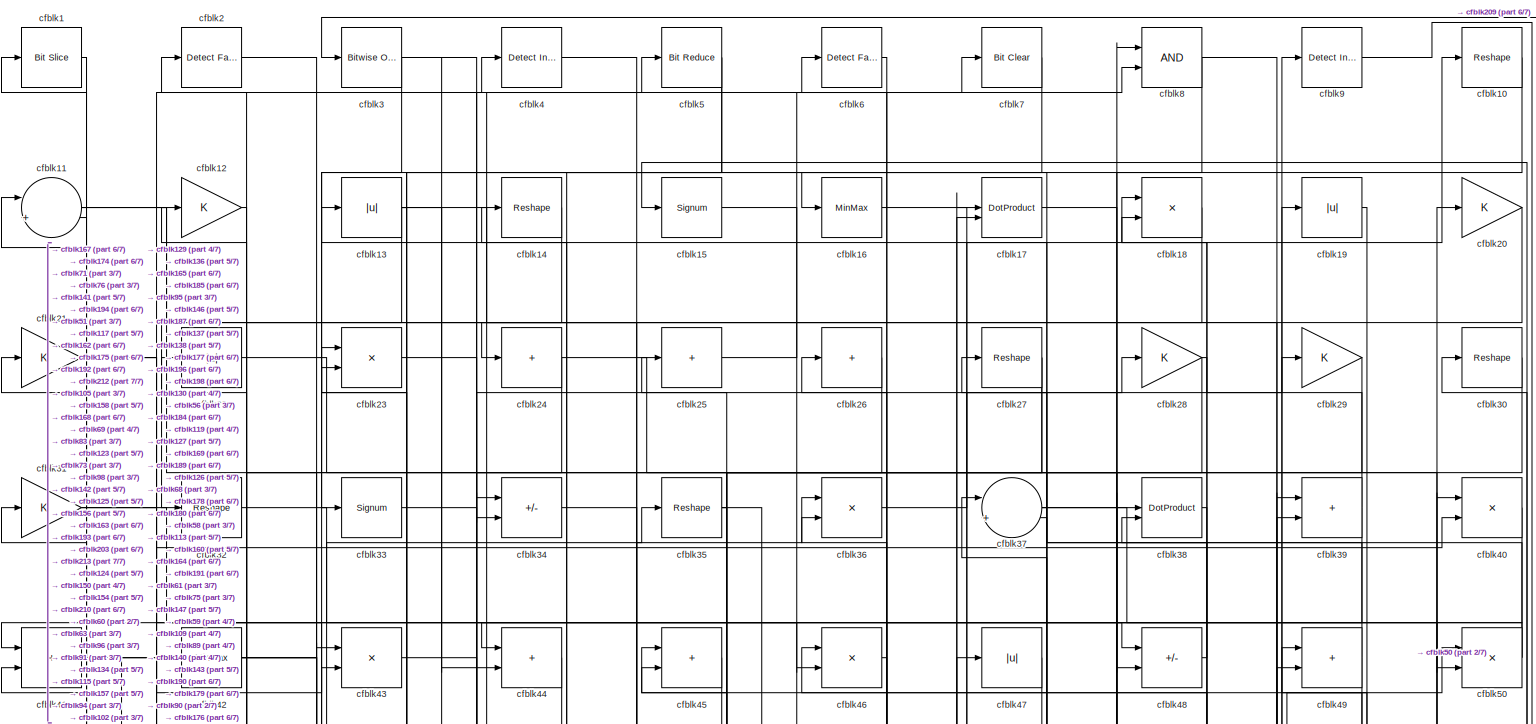
[diagram: root canvas - part 1/7, full width, top band]
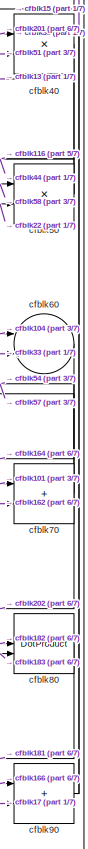
[diagram: root canvas - part 2/7, top right region]
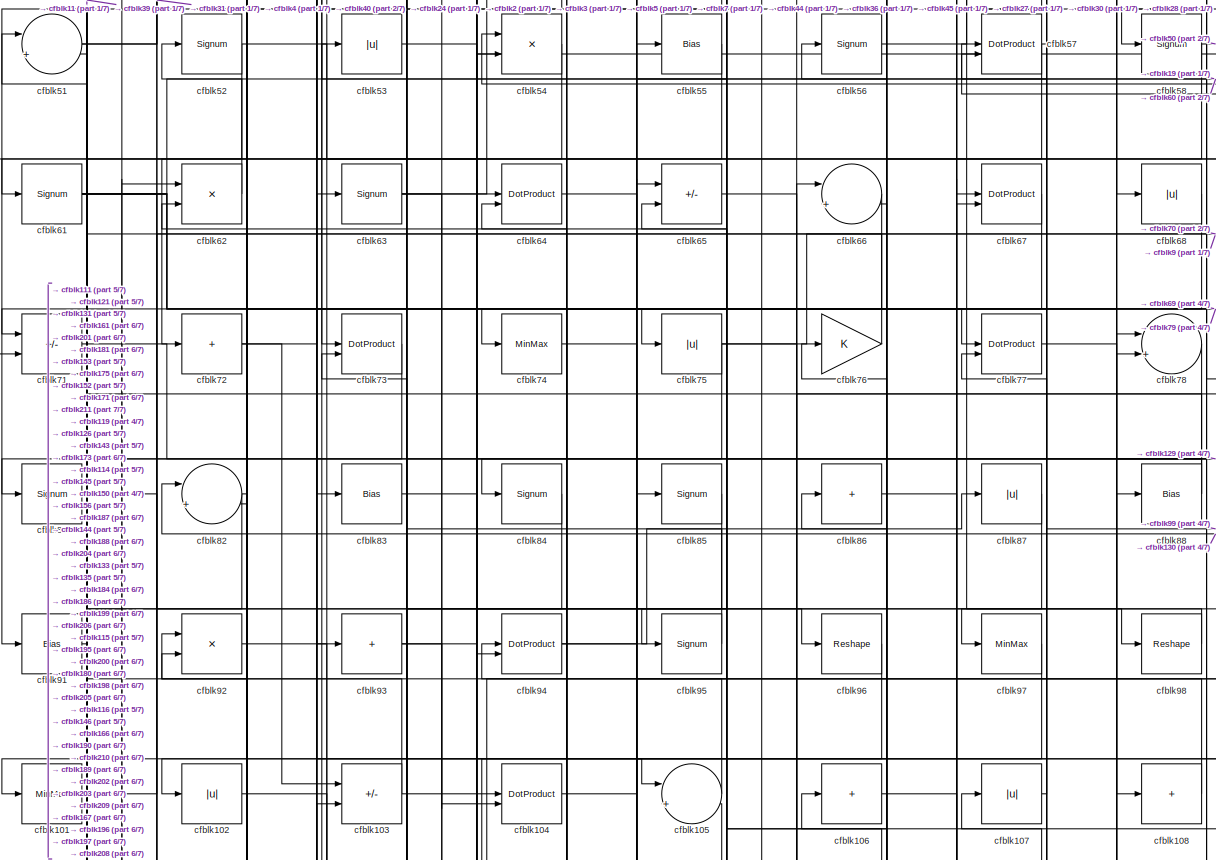
[diagram: root canvas - part 3/7, full width, middle band]
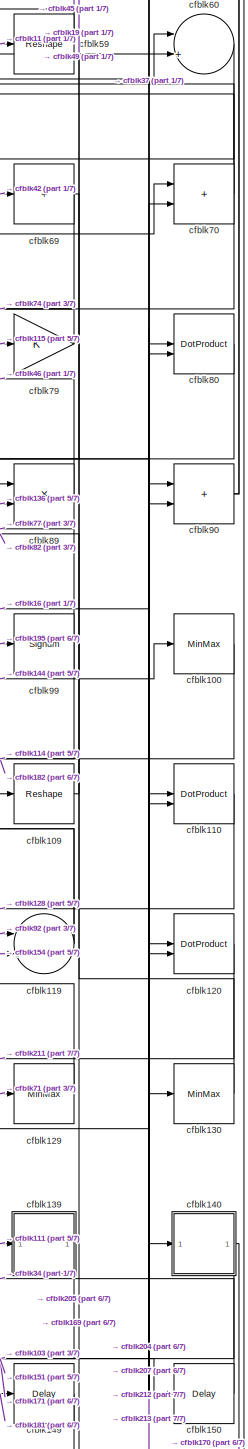
[diagram: root canvas - part 4/7, middle right region]
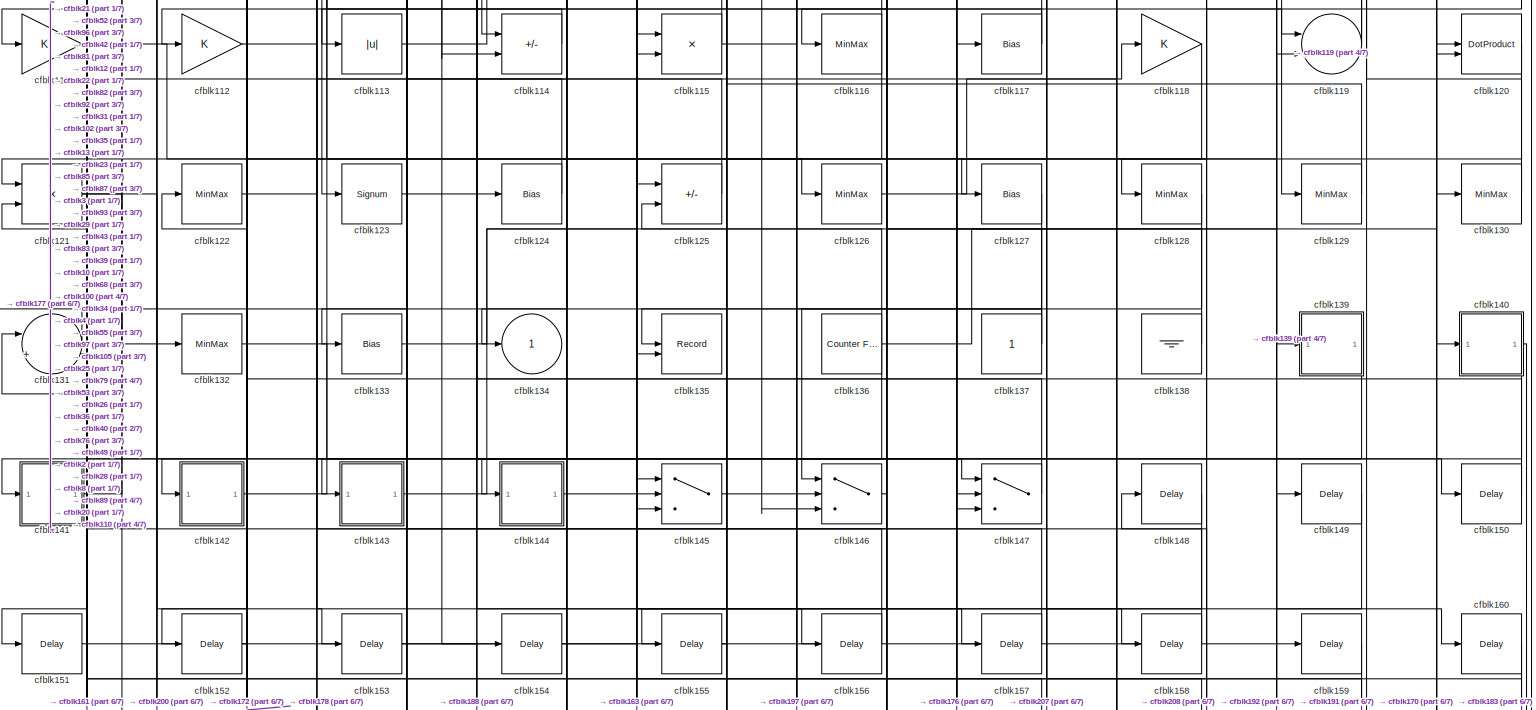
[diagram: root canvas - part 5/7, full width, middle band]
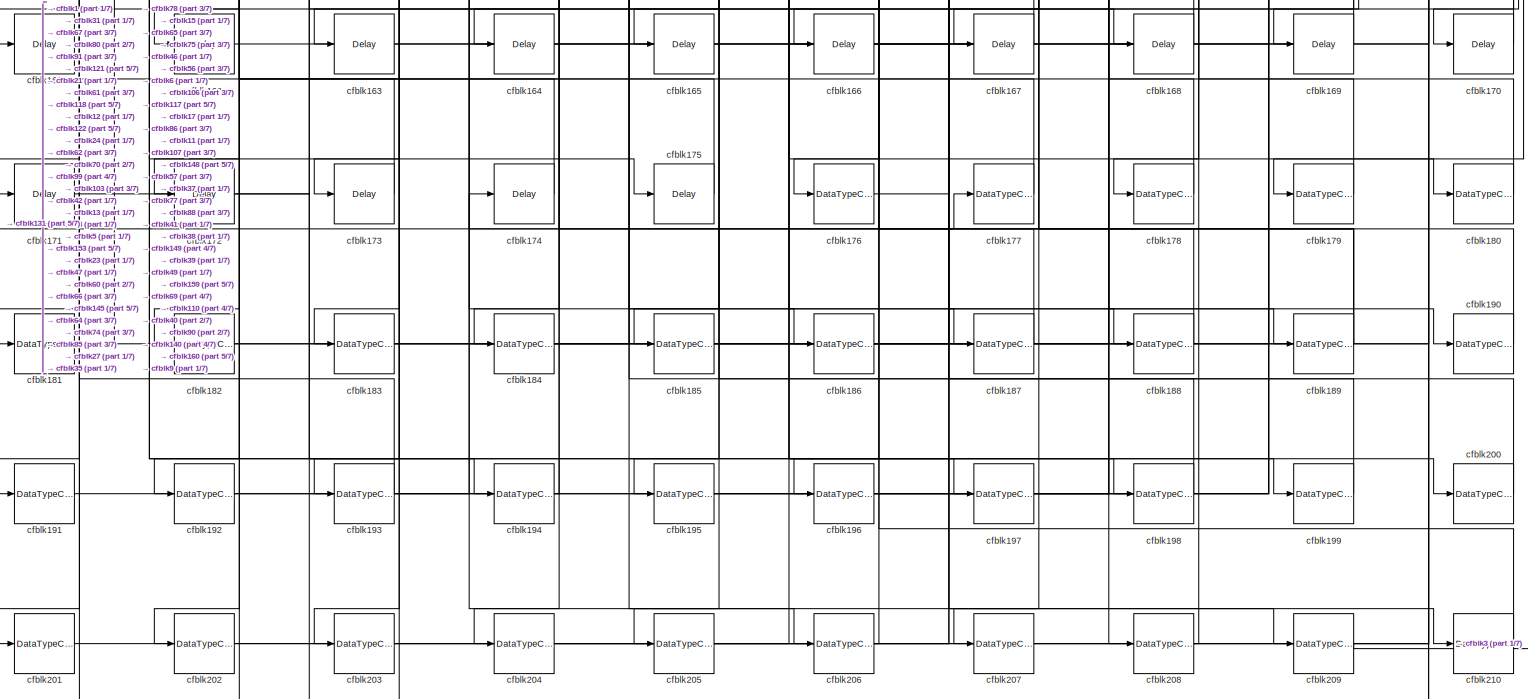
[diagram: root canvas - part 6/7, full width, bottom band]
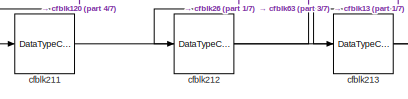
[diagram: root canvas - part 7/7, bottom left region]
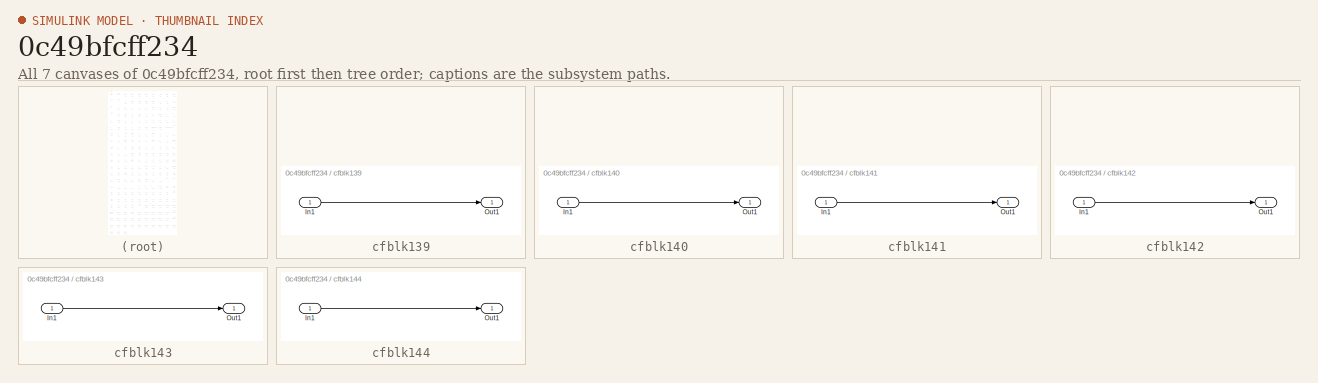
[diagram: thumbnail index - all 7 canvases of the model, root first then tree order]
MODEL slx_0c49bfcff234
KIND model
CONFIG AbsTol = auto
CONFIG EnableMultiTasking = off
CONFIG FixedStep = auto
CONFIG MaxStep = auto
CONFIG MinStep = auto
CONFIG RelTol = 1e-3
CONFIG SampleTimeConstraint = Unconstrained
CONFIG SolverName = VariableStepAuto
CONFIG StartTime = 0.0
CONFIG StopTime = 10.0
BLOCK [Reference] cfblk1  REF=hdlsllib/Logic and Bit
Operations/Bit Slice
  SourceBlock = hdlsllib/Logic and Bit\nOperations/Bit Slice
  SourceType = Bit Slice
BLOCK [Reshape] cfblk10
BLOCK [MinMax] cfblk100
BLOCK [MinMax] cfblk101
BLOCK [Abs] cfblk102
  SaturateOnIntegerOverflow = off
BLOCK [Sum] cfblk103
  IconShape = rectangular
  Inputs = +-
BLOCK [DotProduct] cfblk104
  OutDataTypeStr = Inherit: Inherit via internal rule
BLOCK [Sum] cfblk105
  Inputs = |++
BLOCK [Sum] cfblk106
  IconShape = rectangular
  Inputs = +
BLOCK [Abs] cfblk107
  SaturateOnIntegerOverflow = off
BLOCK [Sum] cfblk108
  IconShape = rectangular
  Inputs = +
BLOCK [Reshape] cfblk109
BLOCK [Sum] cfblk11
  Inputs = |++
BLOCK [DotProduct] cfblk110
  OutDataTypeStr = Inherit: Inherit via internal rule
BLOCK [Gain] cfblk111
BLOCK [Gain] cfblk112
BLOCK [Abs] cfblk113
  SaturateOnIntegerOverflow = off
BLOCK [Sum] cfblk114
  IconShape = rectangular
  Inputs = +-
BLOCK [Product] cfblk115
  Inputs = */
  RndMeth = Zero
  SaturateOnIntegerOverflow = on
BLOCK [MinMax] cfblk116
BLOCK [Bias] cfblk117
  Bias = 0.0
  SaturateOnIntegerOverflow = off
BLOCK [Gain] cfblk118
BLOCK [Sum] cfblk119
  Inputs = |++
BLOCK [Gain] cfblk12
BLOCK [DotProduct] cfblk120
  OutDataTypeStr = Inherit: Inherit via internal rule
BLOCK [Product] cfblk121
  Inputs = */
  RndMeth = Zero
  SaturateOnIntegerOverflow = on
BLOCK [MinMax] cfblk122
BLOCK [Signum] cfblk123
BLOCK [Bias] cfblk124
  Bias = 0.0
  SaturateOnIntegerOverflow = off
BLOCK [Sum] cfblk125
  IconShape = rectangular
  Inputs = +-
BLOCK [MinMax] cfblk126
BLOCK [Bias] cfblk127
  Bias = 0.0
  SaturateOnIntegerOverflow = off
BLOCK [MinMax] cfblk128
BLOCK [MinMax] cfblk129
BLOCK [Abs] cfblk13
  SaturateOnIntegerOverflow = off
BLOCK [MinMax] cfblk130
BLOCK [Sum] cfblk131
  Inputs = |++
BLOCK [MinMax] cfblk132
BLOCK [Bias] cfblk133
  Bias = 0.0
  SaturateOnIntegerOverflow = off
BLOCK [Outport] cfblk134
  VectorParamsAs1DForOutWhenUnconnected = off
BLOCK [Record] cfblk135
  CompatibilityTag = XY
  FileSettingsInternal = {"entries":[{"content":{"excelSettings":{"content":{},"type":"Streamout.ExcelSettings"}},"type":"Streamout.FileSettingStorage","uuid":""}],"packageUris":["http:\/\/schema.mathworks.com\/mf0\/streamout_blocks\/R2020a"],"version":"1.0"}
  Layout = [1 1]
  SignalsInternal = {"entries":[{"content":{"signals":[{"content":{"blockPath":[],"dimensions":[1],"domain":"","lineColor":"#a2142f","plots":[1],"port":1,"signalID":1922,"signalName":"XY Graph:1"},"type":"RecordBlkView.Signal","uuid":""},{"content":{"blockPath":[],"dimensions":[1],"domain":"","lineColor":"#139fff","plots":[1],"port":2,"signalID":1925,"signalName":"XY Graph:2"},"type":"RecordBlkView.Signal","uuid":""}...<+146ch>
  VisualizationBindings = {"xyplotplugin":{"info":[{"series":[{"bindingParametersList":[{"parameter":"X-Axis","signalID":1922,"signalName":"XY Graph:1"},{"parameter":"Y-Axis","signalID":1925,"signalName":"XY Graph:2"}],"seriesID":19021}],"subplotID":1}]}}
  st = -1
BLOCK [Reference] cfblk136  REF=hdlsllib/Sources/Counter
Free-Running
  SourceBlock = hdlsllib/Sources/Counter\nFree-Running
  SourceType = Counter Free-Running
BLOCK [Constant] cfblk137
  SampleTime = -1
BLOCK [Ground] cfblk138
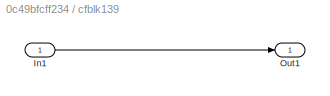
BLOCK [SubSystem] cfblk139
  LibrarySourceBlock = hdlsllib/Ports &\nSubsystems/Subsystem
BLOCK [Inport] cfblk139/In1
BLOCK [Outport] cfblk139/Out1
BLOCK [Reshape] cfblk14
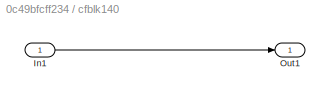
BLOCK [SubSystem] cfblk140
  LibrarySourceBlock = hdlsllib/Ports &\nSubsystems/Subsystem
BLOCK [Inport] cfblk140/In1
BLOCK [Outport] cfblk140/Out1
BLOCK [SubSystem] cfblk141
  LibrarySourceBlock = hdlsllib/Ports &\nSubsystems/Subsystem
BLOCK [Inport] cfblk141/In1
BLOCK [Outport] cfblk141/Out1
BLOCK [SubSystem] cfblk142
  LibrarySourceBlock = hdlsllib/Ports &\nSubsystems/Subsystem
BLOCK [Inport] cfblk142/In1
BLOCK [Outport] cfblk142/Out1
BLOCK [SubSystem] cfblk143
  LibrarySourceBlock = hdlsllib/Ports &\nSubsystems/Subsystem
BLOCK [Inport] cfblk143/In1
BLOCK [Outport] cfblk143/Out1
BLOCK [SubSystem] cfblk144
  LibrarySourceBlock = hdlsllib/Ports &\nSubsystems/Subsystem
BLOCK [Inport] cfblk144/In1
BLOCK [Outport] cfblk144/Out1
BLOCK [Switch] cfblk145
  InputSameDT = off
  SaturateOnIntegerOverflow = off
BLOCK [Switch] cfblk146
  InputSameDT = off
  SaturateOnIntegerOverflow = off
BLOCK [Switch] cfblk147
  InputSameDT = off
  SaturateOnIntegerOverflow = off
BLOCK [Delay] cfblk148
  InputPortMap = u0
  SampleTime = 1
BLOCK [Delay] cfblk149
  InputPortMap = u0
  SampleTime = 1
BLOCK [Signum] cfblk15
BLOCK [Delay] cfblk150
  InputPortMap = u0
  SampleTime = 1
BLOCK [Delay] cfblk151
  InputPortMap = u0
  SampleTime = 1
BLOCK [Delay] cfblk152
  InputPortMap = u0
  SampleTime = 1
BLOCK [Delay] cfblk153
  InputPortMap = u0
  SampleTime = 1
BLOCK [Delay] cfblk154
  InputPortMap = u0
  SampleTime = 1
BLOCK [Delay] cfblk155
  InputPortMap = u0
  SampleTime = 1
BLOCK [Delay] cfblk156
  InputPortMap = u0
  SampleTime = 1
BLOCK [Delay] cfblk157
  InputPortMap = u0
  SampleTime = 1
BLOCK [Delay] cfblk158
  InputPortMap = u0
  SampleTime = 1
BLOCK [Delay] cfblk159
  InputPortMap = u0
  SampleTime = 1
BLOCK [MinMax] cfblk16
BLOCK [Delay] cfblk160
  InputPortMap = u0
  SampleTime = 1
BLOCK [Delay] cfblk161
  InputPortMap = u0
  SampleTime = 1
BLOCK [Delay] cfblk162
  InputPortMap = u0
  SampleTime = 1
BLOCK [Delay] cfblk163
  InputPortMap = u0
  SampleTime = 1
BLOCK [Delay] cfblk164
  InputPortMap = u0
  SampleTime = 1
BLOCK [Delay] cfblk165
  InputPortMap = u0
  SampleTime = 1
BLOCK [Delay] cfblk166
  InputPortMap = u0
  SampleTime = 1
BLOCK [Delay] cfblk167
  InputPortMap = u0
  SampleTime = 1
BLOCK [Delay] cfblk168
  InputPortMap = u0
  SampleTime = 1
BLOCK [Delay] cfblk169
  InputPortMap = u0
  SampleTime = 1
BLOCK [DotProduct] cfblk17
  OutDataTypeStr = Inherit: Inherit via internal rule
BLOCK [Delay] cfblk170
  InputPortMap = u0
  SampleTime = 1
BLOCK [Delay] cfblk171
  InputPortMap = u0
  SampleTime = 1
BLOCK [Delay] cfblk172
  InputPortMap = u0
  SampleTime = 1
BLOCK [Delay] cfblk173
  InputPortMap = u0
  SampleTime = 1
BLOCK [Delay] cfblk174
  InputPortMap = u0
  SampleTime = 1
BLOCK [Delay] cfblk175
  InputPortMap = u0
  SampleTime = 1
BLOCK [DataTypeConversion] cfblk176
  OutDataTypeStr = uint8
  RndMeth = Floor
  SaturateOnIntegerOverflow = off
BLOCK [DataTypeConversion] cfblk177
  OutDataTypeStr = uint8
  RndMeth = Floor
  SaturateOnIntegerOverflow = off
BLOCK [DataTypeConversion] cfblk178
  OutDataTypeStr = uint8
  RndMeth = Floor
  SaturateOnIntegerOverflow = off
BLOCK [DataTypeConversion] cfblk179
  OutDataTypeStr = uint8
  RndMeth = Floor
  SaturateOnIntegerOverflow = off
BLOCK [Product] cfblk18
  Inputs = */
  RndMeth = Zero
  SaturateOnIntegerOverflow = on
BLOCK [DataTypeConversion] cfblk180
  OutDataTypeStr = uint8
  RndMeth = Floor
  SaturateOnIntegerOverflow = off
BLOCK [DataTypeConversion] cfblk181
  RndMeth = Floor
  SaturateOnIntegerOverflow = off
BLOCK [DataTypeConversion] cfblk182
  OutDataTypeStr = uint8
  RndMeth = Floor
  SaturateOnIntegerOverflow = off
BLOCK [DataTypeConversion] cfblk183
  OutDataTypeStr = uint8
  RndMeth = Floor
  SaturateOnIntegerOverflow = off
BLOCK [DataTypeConversion] cfblk184
  OutDataTypeStr = uint8
  RndMeth = Floor
  SaturateOnIntegerOverflow = off
BLOCK [DataTypeConversion] cfblk185
  OutDataTypeStr = uint8
  RndMeth = Floor
  SaturateOnIntegerOverflow = off
BLOCK [DataTypeConversion] cfblk186
  OutDataTypeStr = uint8
  RndMeth = Floor
  SaturateOnIntegerOverflow = off
BLOCK [DataTypeConversion] cfblk187
  OutDataTypeStr = uint8
  RndMeth = Floor
  SaturateOnIntegerOverflow = off
BLOCK [DataTypeConversion] cfblk188
  OutDataTypeStr = uint8
  RndMeth = Floor
  SaturateOnIntegerOverflow = off
BLOCK [DataTypeConversion] cfblk189
  RndMeth = Floor
  SaturateOnIntegerOverflow = off
BLOCK [Abs] cfblk19
  SaturateOnIntegerOverflow = off
BLOCK [DataTypeConversion] cfblk190
  OutDataTypeStr = uint8
  RndMeth = Floor
  SaturateOnIntegerOverflow = off
BLOCK [DataTypeConversion] cfblk191
  OutDataTypeStr = uint8
  RndMeth = Floor
  SaturateOnIntegerOverflow = off
BLOCK [DataTypeConversion] cfblk192
  OutDataTypeStr = uint8
  RndMeth = Floor
  SaturateOnIntegerOverflow = off
BLOCK [DataTypeConversion] cfblk193
  RndMeth = Floor
  SaturateOnIntegerOverflow = off
BLOCK [DataTypeConversion] cfblk194
  OutDataTypeStr = uint8
  RndMeth = Floor
  SaturateOnIntegerOverflow = off
BLOCK [DataTypeConversion] cfblk195
  OutDataTypeStr = uint8
  RndMeth = Floor
  SaturateOnIntegerOverflow = off
BLOCK [DataTypeConversion] cfblk196
  OutDataTypeStr = uint8
  RndMeth = Floor
  SaturateOnIntegerOverflow = off
BLOCK [DataTypeConversion] cfblk197
  OutDataTypeStr = uint8
  RndMeth = Floor
  SaturateOnIntegerOverflow = off
BLOCK [DataTypeConversion] cfblk198
  OutDataTypeStr = uint8
  RndMeth = Floor
  SaturateOnIntegerOverflow = off
BLOCK [DataTypeConversion] cfblk199
  OutDataTypeStr = uint8
  RndMeth = Floor
  SaturateOnIntegerOverflow = off
BLOCK [Reference] cfblk2  REF=hdlsllib/Logic and Bit
Operations/Detect Fall
Negative
  SourceBlock = hdlsllib/Logic and Bit\nOperations/Detect Fall\nNegative
  SourceType = Detect Fall Negative
BLOCK [Gain] cfblk20
BLOCK [DataTypeConversion] cfblk200
  OutDataTypeStr = uint8
  RndMeth = Floor
  SaturateOnIntegerOverflow = off
BLOCK [DataTypeConversion] cfblk201
  OutDataTypeStr = uint8
  RndMeth = Floor
  SaturateOnIntegerOverflow = off
BLOCK [DataTypeConversion] cfblk202
  OutDataTypeStr = uint8
  RndMeth = Floor
  SaturateOnIntegerOverflow = off
BLOCK [DataTypeConversion] cfblk203
  OutDataTypeStr = uint8
  RndMeth = Floor
  SaturateOnIntegerOverflow = off
BLOCK [DataTypeConversion] cfblk204
  OutDataTypeStr = uint8
  RndMeth = Floor
  SaturateOnIntegerOverflow = off
BLOCK [DataTypeConversion] cfblk205
  OutDataTypeStr = uint8
  RndMeth = Floor
  SaturateOnIntegerOverflow = off
BLOCK [DataTypeConversion] cfblk206
  OutDataTypeStr = uint8
  RndMeth = Floor
  SaturateOnIntegerOverflow = off
BLOCK [DataTypeConversion] cfblk207
  OutDataTypeStr = uint8
  RndMeth = Floor
  SaturateOnIntegerOverflow = off
BLOCK [DataTypeConversion] cfblk208
  OutDataTypeStr = uint8
  RndMeth = Floor
  SaturateOnIntegerOverflow = off
BLOCK [DataTypeConversion] cfblk209
  OutDataTypeStr = uint8
  RndMeth = Floor
  SaturateOnIntegerOverflow = off
BLOCK [Gain] cfblk21
BLOCK [DataTypeConversion] cfblk210
  OutDataTypeStr = uint8
  RndMeth = Floor
  SaturateOnIntegerOverflow = off
BLOCK [DataTypeConversion] cfblk211
  OutDataTypeStr = uint8
  RndMeth = Floor
  SaturateOnIntegerOverflow = off
BLOCK [DataTypeConversion] cfblk212
  OutDataTypeStr = uint8
  RndMeth = Floor
  SaturateOnIntegerOverflow = off
BLOCK [DataTypeConversion] cfblk213
  OutDataTypeStr = uint8
  RndMeth = Floor
  SaturateOnIntegerOverflow = off
BLOCK [Abs] cfblk22
  SaturateOnIntegerOverflow = off
BLOCK [Product] cfblk23
  Inputs = */
  RndMeth = Zero
  SaturateOnIntegerOverflow = on
BLOCK [Sum] cfblk24
  IconShape = rectangular
  Inputs = +
BLOCK [Sum] cfblk25
  IconShape = rectangular
  Inputs = +
BLOCK [Sum] cfblk26
  IconShape = rectangular
  Inputs = +
BLOCK [Reshape] cfblk27
BLOCK [Gain] cfblk28
BLOCK [Gain] cfblk29
BLOCK [Reference] cfblk3  REF=simulink/Logic and Bit
Operations/Bitwise
Operator
  LibrarySourceBlock = hdlsllib/Logic and Bit\nOperations/Bitwise\nOperator
  SourceBlock = simulink/Logic and Bit\nOperations/Bitwise\nOperator
  SourceType = Bitwise Operator
BLOCK [Reshape] cfblk30
BLOCK [Gain] cfblk31
BLOCK [Reshape] cfblk32
BLOCK [Signum] cfblk33
BLOCK [Sum] cfblk34
  IconShape = rectangular
  Inputs = +-
BLOCK [Reshape] cfblk35
BLOCK [Product] cfblk36
  Inputs = */
  RndMeth = Zero
  SaturateOnIntegerOverflow = on
BLOCK [Sum] cfblk37
  Inputs = |++
BLOCK [DotProduct] cfblk38
  OutDataTypeStr = Inherit: Inherit via internal rule
BLOCK [Sum] cfblk39
  IconShape = rectangular
BLOCK [Reference] cfblk4  REF=simulink/Logic and Bit
Operations/Detect
Increase
  LibrarySourceBlock = hdlsllib/Logic and Bit\nOperations/Detect\nIncrease
  SourceBlock = simulink/Logic and Bit\nOperations/Detect\nIncrease
  SourceType = Detect Increase
BLOCK [Product] cfblk40
  Inputs = */
  RndMeth = Zero
  SaturateOnIntegerOverflow = on
BLOCK [Sum] cfblk41
  IconShape = rectangular
BLOCK [MinMax] cfblk42
BLOCK [Product] cfblk43
  Inputs = */
  RndMeth = Zero
  SaturateOnIntegerOverflow = on
BLOCK [Sum] cfblk44
  IconShape = rectangular
BLOCK [Sum] cfblk45
  IconShape = rectangular
BLOCK [Product] cfblk46
  Inputs = */
  RndMeth = Zero
  SaturateOnIntegerOverflow = on
BLOCK [Abs] cfblk47
  SaturateOnIntegerOverflow = off
BLOCK [Sum] cfblk48
  IconShape = rectangular
  Inputs = +-
BLOCK [Sum] cfblk49
  IconShape = rectangular
BLOCK [Reference] cfblk5  REF=hdlsllib/Logic and Bit
Operations/Bit Reduce
  SourceBlock = hdlsllib/Logic and Bit\nOperations/Bit Reduce
  SourceType = Bit Reduce
BLOCK [Product] cfblk50
  Inputs = */
  RndMeth = Zero
  SaturateOnIntegerOverflow = on
BLOCK [Sum] cfblk51
  Inputs = |++
BLOCK [Signum] cfblk52
BLOCK [Abs] cfblk53
  SaturateOnIntegerOverflow = off
BLOCK [Product] cfblk54
  Inputs = */
  RndMeth = Zero
  SaturateOnIntegerOverflow = on
BLOCK [Bias] cfblk55
  Bias = 0.0
  SaturateOnIntegerOverflow = off
BLOCK [Signum] cfblk56
BLOCK [DotProduct] cfblk57
  OutDataTypeStr = Inherit: Inherit via internal rule
BLOCK [Signum] cfblk58
BLOCK [Reshape] cfblk59
BLOCK [Reference] cfblk6  REF=hdlsllib/Logic and Bit
Operations/Detect Fall
Nonpositive
  SourceBlock = hdlsllib/Logic and Bit\nOperations/Detect Fall\nNonpositive
  SourceType = Detect Fall Nonpositive
BLOCK [Sum] cfblk60
  Inputs = |++
BLOCK [Signum] cfblk61
BLOCK [Product] cfblk62
  Inputs = */
  RndMeth = Zero
  SaturateOnIntegerOverflow = on
BLOCK [Signum] cfblk63
BLOCK [DotProduct] cfblk64
  OutDataTypeStr = Inherit: Inherit via internal rule
BLOCK [Sum] cfblk65
  IconShape = rectangular
  Inputs = +-
BLOCK [Sum] cfblk66
  Inputs = |++
BLOCK [DotProduct] cfblk67
  OutDataTypeStr = Inherit: Inherit via internal rule
BLOCK [Abs] cfblk68
  SaturateOnIntegerOverflow = off
BLOCK [Sum] cfblk69
  IconShape = rectangular
  Inputs = +
BLOCK [Reference] cfblk7  REF=simulink/Logic and Bit
Operations/Bit Clear
  LibrarySourceBlock = hdlsllib/Logic and Bit\nOperations/Bit Clear
  SourceBlock = simulink/Logic and Bit\nOperations/Bit Clear
  SourceType = Bit Clear
BLOCK [Sum] cfblk70
  IconShape = rectangular
BLOCK [Sum] cfblk71
  IconShape = rectangular
  Inputs = +-
BLOCK [Sum] cfblk72
  IconShape = rectangular
  Inputs = +
BLOCK [DotProduct] cfblk73
  OutDataTypeStr = Inherit: Inherit via internal rule
BLOCK [MinMax] cfblk74
BLOCK [Abs] cfblk75
  SaturateOnIntegerOverflow = off
BLOCK [Gain] cfblk76
BLOCK [DotProduct] cfblk77
  OutDataTypeStr = Inherit: Inherit via internal rule
BLOCK [Sum] cfblk78
  Inputs = |++
BLOCK [Gain] cfblk79
BLOCK [Logic] cfblk8
  AllPortsSameDT = off
  OutDataTypeStr = boolean
BLOCK [DotProduct] cfblk80
  OutDataTypeStr = Inherit: Inherit via internal rule
BLOCK [Signum] cfblk81
BLOCK [Sum] cfblk82
  Inputs = |++
BLOCK [Bias] cfblk83
  Bias = 0.0
  SaturateOnIntegerOverflow = off
BLOCK [Signum] cfblk84
BLOCK [Signum] cfblk85
BLOCK [Sum] cfblk86
  IconShape = rectangular
  Inputs = +
BLOCK [Abs] cfblk87
  SaturateOnIntegerOverflow = off
BLOCK [Bias] cfblk88
  Bias = 0.0
  SaturateOnIntegerOverflow = off
BLOCK [Product] cfblk89
  Inputs = */
  RndMeth = Zero
  SaturateOnIntegerOverflow = on
BLOCK [Reference] cfblk9  REF=simulink/Logic and Bit
Operations/Detect
Increase
  LibrarySourceBlock = hdlsllib/Logic and Bit\nOperations/Detect\nIncrease
  SourceBlock = simulink/Logic and Bit\nOperations/Detect\nIncrease
  SourceType = Detect Increase
BLOCK [Sum] cfblk90
  IconShape = rectangular
BLOCK [Bias] cfblk91
  Bias = 0.0
  SaturateOnIntegerOverflow = off
BLOCK [Product] cfblk92
  Inputs = */
  RndMeth = Zero
  SaturateOnIntegerOverflow = on
BLOCK [Sum] cfblk93
  IconShape = rectangular
  Inputs = +
BLOCK [DotProduct] cfblk94
  OutDataTypeStr = Inherit: Inherit via internal rule
BLOCK [Signum] cfblk95
BLOCK [Reshape] cfblk96
BLOCK [MinMax] cfblk97
BLOCK [Reshape] cfblk98
BLOCK [Signum] cfblk99
LINE cfblk100:1 -> cfblk114:1
LINE cfblk101:1 -> cfblk70:1
LINE cfblk102:1 -> cfblk126:1
NET cfblk103:1 -> cfblk150:1, cfblk92:1
LINE cfblk104:1 -> cfblk60:1
LINE cfblk105:1 -> cfblk51:1
LINE cfblk106:1 -> cfblk189:1
LINE cfblk107:1 -> cfblk57:1
LINE cfblk108:1 -> cfblk94:1
LINE cfblk109:1 -> cfblk49:1
LINE cfblk10:1 -> cfblk134:1
LINE cfblk110:1 -> cfblk128:1
LINE cfblk111:1 -> cfblk139:1
LINE cfblk112:1 -> cfblk158:1
LINE cfblk113:1 -> cfblk39:1
LINE cfblk114:1 -> cfblk112:1
NET cfblk115:1 -> cfblk105:2, cfblk79:1
NET cfblk116:1 -> cfblk155:1, cfblk53:1
NET cfblk117:1 -> cfblk113:1, cfblk2:1
LINE cfblk118:1 -> cfblk172:1
NET cfblk119:1 -> cfblk109:1, cfblk37:2
NET cfblk11:1 -> cfblk59:1, cfblk83:1
LINE cfblk120:1 -> cfblk211:1
NET cfblk121:1 -> cfblk132:1, cfblk200:1
LINE cfblk122:1 -> cfblk118:1
LINE cfblk123:1 -> cfblk29:1
LINE cfblk124:1 -> cfblk21:1
LINE cfblk125:1 -> cfblk23:1
LINE cfblk126:1 -> cfblk8:1
LINE cfblk127:1 -> cfblk141:1
LINE cfblk128:1 -> cfblk146:1
LINE cfblk129:1 -> cfblk45:2
LINE cfblk12:1 -> cfblk142:1
LINE cfblk130:1 -> cfblk82:1
LINE cfblk131:1 -> cfblk177:1
LINE cfblk132:1 -> cfblk147:1
LINE cfblk133:1 -> cfblk55:1
NET cfblk136:1 -> cfblk146:2, cfblk25:1, cfblk89:2
NET cfblk137:1 -> cfblk135:1, cfblk36:2
LINE cfblk138:1 -> cfblk26:1
LINE cfblk139/In1:1 -> cfblk139/Out1:1
LINE cfblk139:1 -> cfblk151:1
NET cfblk13:1 -> cfblk125:1, cfblk162:1, cfblk213:1, cfblk44:2
LINE cfblk140/In1:1 -> cfblk140/Out1:1
NET cfblk140:1 -> cfblk170:1, cfblk171:1
LINE cfblk141/In1:1 -> cfblk141/Out1:1
LINE cfblk141:1 -> cfblk42:1
LINE cfblk142/In1:1 -> cfblk142/Out1:1
LINE cfblk142:1 -> cfblk35:1
LINE cfblk143/In1:1 -> cfblk143/Out1:1
LINE cfblk143:1 -> cfblk20:1
LINE cfblk144/In1:1 -> cfblk144/Out1:1
LINE cfblk144:1 -> cfblk100:1
LINE cfblk145:1 -> cfblk197:1
LINE cfblk146:1 -> cfblk76:1
LINE cfblk147:1 -> cfblk22:1
LINE cfblk148:1 -> cfblk207:1
LINE cfblk149:1 -> cfblk205:1
LINE cfblk14:1 -> cfblk193:1
LINE cfblk150:1 -> cfblk34:1
LINE cfblk151:1 -> cfblk115:2
LINE cfblk152:1 -> cfblk92:2
LINE cfblk153:1 -> cfblk188:1
LINE cfblk154:1 -> cfblk119:2
LINE cfblk155:1 -> cfblk125:2
LINE cfblk156:1 -> cfblk23:2
LINE cfblk157:1 -> cfblk131:1
LINE cfblk158:1 -> cfblk43:1
LINE cfblk159:1 -> cfblk191:1
LINE cfblk15:1 -> cfblk187:1
LINE cfblk160:1 -> cfblk183:1
LINE cfblk161:1 -> cfblk121:2
LINE cfblk162:1 -> cfblk70:2
LINE cfblk163:1 -> cfblk145:2
LINE cfblk164:1 -> cfblk49:2
LINE cfblk165:1 -> cfblk17:2
LINE cfblk166:1 -> cfblk90:1
LINE cfblk167:1 -> cfblk11:2
LINE cfblk168:1 -> cfblk41:2
LINE cfblk169:1 -> cfblk37:1
LINE cfblk16:1 -> cfblk130:1
LINE cfblk170:1 -> cfblk145:1
LINE cfblk171:1 -> cfblk103:2
LINE cfblk172:1 -> cfblk199:1
LINE cfblk173:1 -> cfblk62:2
LINE cfblk174:1 -> cfblk1:1
LINE cfblk175:1 -> cfblk12:1
LINE cfblk176:1 -> cfblk117:1
LINE cfblk177:1 -> cfblk6:1
LINE cfblk178:1 -> cfblk122:1
LINE cfblk179:1 -> cfblk38:1
LINE cfblk17:1 -> cfblk90:2
LINE cfblk180:1 -> cfblk38:2
NET cfblk181:1 -> cfblk149:1, cfblk62:1
LINE cfblk182:1 -> cfblk80:1
LINE cfblk183:1 -> cfblk80:2
LINE cfblk184:1 -> cfblk85:1
LINE cfblk185:1 -> cfblk47:1
LINE cfblk186:1 -> cfblk88:1
LINE cfblk187:1 -> cfblk64:1
LINE cfblk188:1 -> cfblk64:2
NET cfblk189:1 -> cfblk107:1, cfblk27:1, cfblk56:1
LINE cfblk18:1 -> cfblk24:1
LINE cfblk190:1 -> cfblk106:1
LINE cfblk191:1 -> cfblk39:2
LINE cfblk192:1 -> cfblk159:1
NET cfblk193:1 -> cfblk174:1, cfblk31:1
LINE cfblk194:1 -> cfblk14:1
LINE cfblk195:1 -> cfblk99:1
LINE cfblk196:1 -> cfblk78:1
LINE cfblk197:1 -> cfblk78:2
LINE cfblk198:1 -> cfblk17:1
LINE cfblk199:1 -> cfblk65:1
LINE cfblk19:1 -> cfblk89:1
LINE cfblk1:1 -> cfblk41:1
LINE cfblk200:1 -> cfblk65:2
LINE cfblk201:1 -> cfblk40:1
LINE cfblk202:1 -> cfblk67:1
LINE cfblk203:1 -> cfblk67:2
LINE cfblk204:1 -> cfblk110:2
LINE cfblk205:1 -> cfblk66:1
LINE cfblk206:1 -> cfblk66:2
LINE cfblk207:1 -> cfblk110:1
LINE cfblk208:1 -> cfblk148:1
LINE cfblk209:1 -> cfblk3:1
LINE cfblk20:1 -> cfblk32:1
LINE cfblk210:1 -> cfblk86:1
LINE cfblk211:1 -> cfblk63:1
LINE cfblk212:1 -> cfblk120:1
LINE cfblk213:1 -> cfblk120:2
NET cfblk21:1 -> cfblk194:1, cfblk46:2
LINE cfblk22:1 -> cfblk50:2
LINE cfblk23:1 -> cfblk210:1
NET cfblk24:1 -> cfblk192:1, cfblk68:1
LINE cfblk25:1 -> cfblk8:2
LINE cfblk26:1 -> cfblk212:1
NET cfblk27:1 -> cfblk165:1, cfblk95:1
NET cfblk28:1 -> cfblk127:1, cfblk58:1
LINE cfblk29:1 -> cfblk34:2
LINE cfblk2:1 -> cfblk105:1
LINE cfblk30:1 -> cfblk75:1
NET cfblk31:1 -> cfblk123:1, cfblk98:1
LINE cfblk32:1 -> cfblk48:1
LINE cfblk33:1 -> cfblk60:2
LINE cfblk34:1 -> cfblk115:1
NET cfblk35:1 -> cfblk146:3, cfblk185:1
LINE cfblk36:1 -> cfblk10:1
NET cfblk37:1 -> cfblk140:1, cfblk190:1
LINE cfblk38:1 -> cfblk178:1
NET cfblk39:1 -> cfblk18:2, cfblk71:1
NET cfblk3:1 -> cfblk154:1, cfblk73:1, cfblk96:1
LINE cfblk40:1 -> cfblk116:1
LINE cfblk41:1 -> cfblk43:2
NET cfblk42:1 -> cfblk147:2, cfblk168:1, cfblk69:1
LINE cfblk43:1 -> cfblk124:1
LINE cfblk44:1 -> cfblk91:1
LINE cfblk45:1 -> cfblk102:1
LINE cfblk46:1 -> cfblk196:1
LINE cfblk47:1 -> cfblk184:1
LINE cfblk48:1 -> cfblk18:1
NET cfblk49:1 -> cfblk147:3, cfblk16:1
LINE cfblk4:1 -> cfblk157:1
NET cfblk50:1 -> cfblk13:1, cfblk44:1
NET cfblk51:1 -> cfblk40:2, cfblk4:1
NET cfblk52:1 -> cfblk121:1, cfblk94:2
LINE cfblk53:1 -> cfblk156:1
LINE cfblk54:1 -> cfblk72:1
LINE cfblk55:1 -> cfblk61:1
LINE cfblk56:1 -> cfblk28:1
NET cfblk57:1 -> cfblk166:1, cfblk167:1
NET cfblk58:1 -> cfblk50:1, cfblk71:2
LINE cfblk59:1 -> cfblk45:1
NET cfblk5:1 -> cfblk163:1, cfblk203:1
LINE cfblk60:1 -> cfblk164:1
NET cfblk61:1 -> cfblk104:1, cfblk108:1, cfblk175:1, cfblk19:1, cfblk93:1
LINE cfblk62:1 -> cfblk52:1
NET cfblk63:1 -> cfblk104:2, cfblk5:1, cfblk7:1
LINE cfblk64:1 -> cfblk186:1
LINE cfblk65:1 -> cfblk198:1
LINE cfblk66:1 -> cfblk204:1
LINE cfblk67:1 -> cfblk201:1
LINE cfblk68:1 -> cfblk144:1
NET cfblk69:1 -> cfblk169:1, cfblk82:2
LINE cfblk6:1 -> cfblk176:1
NET cfblk70:1 -> cfblk202:1, cfblk54:1, cfblk57:2
LINE cfblk71:1 -> cfblk129:1
NET cfblk72:1 -> cfblk103:1, cfblk77:1
LINE cfblk73:1 -> cfblk81:1
LINE cfblk74:1 -> cfblk206:1
NET cfblk75:1 -> cfblk173:1, cfblk180:1, cfblk9:1
LINE cfblk76:1 -> cfblk11:1
LINE cfblk77:1 -> cfblk208:1
LINE cfblk78:1 -> cfblk195:1
LINE cfblk79:1 -> cfblk74:1
LINE cfblk7:1 -> cfblk33:1
LINE cfblk80:1 -> cfblk181:1
LINE cfblk81:1 -> cfblk153:1
NET cfblk82:1 -> cfblk111:1, cfblk152:1
LINE cfblk83:1 -> cfblk145:3
LINE cfblk84:1 -> cfblk101:1
LINE cfblk85:1 -> cfblk133:1
LINE cfblk86:1 -> cfblk209:1
LINE cfblk87:1 -> cfblk143:1
NET cfblk88:1 -> cfblk51:2, cfblk84:1
LINE cfblk89:1 -> cfblk46:1
NET cfblk8:1 -> cfblk160:1, cfblk48:2
NET cfblk90:1 -> cfblk15:1, cfblk30:1
LINE cfblk91:1 -> cfblk161:1
LINE cfblk92:1 -> cfblk119:1
NET cfblk93:1 -> cfblk114:2, cfblk54:2
NET cfblk94:1 -> cfblk36:1, cfblk87:1
LINE cfblk95:1 -> cfblk73:2
LINE cfblk96:1 -> cfblk131:2
LINE cfblk97:1 -> cfblk135:2
LINE cfblk98:1 -> cfblk97:1
NET cfblk99:1 -> cfblk182:1, cfblk77:2
LINE cfblk9:1 -> cfblk179:1
note: NET lines group one-source signal fan-out (src -> all destinations, sorted); 1:1 wires keep LINE
